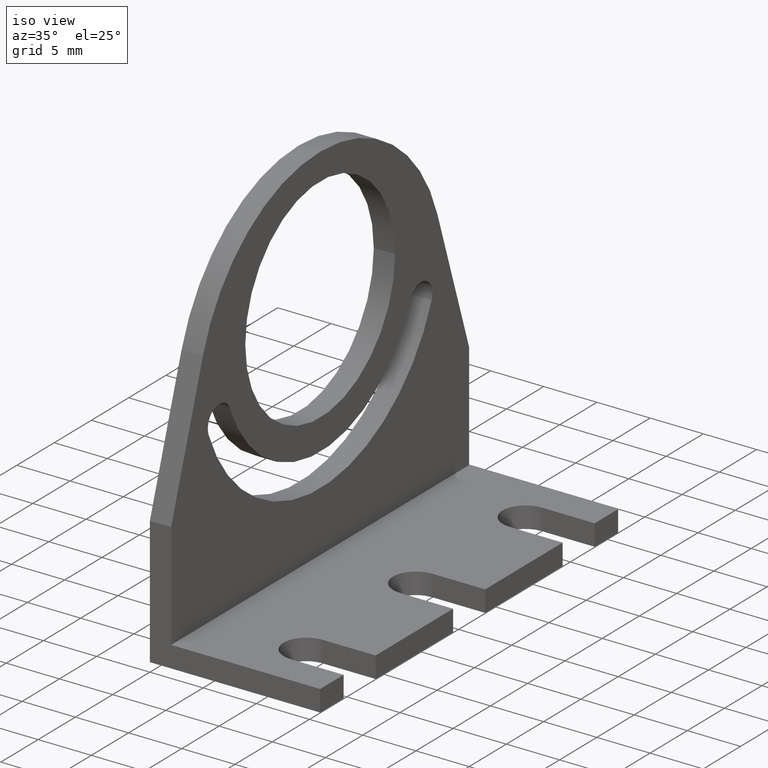
[diagram: clean part render]
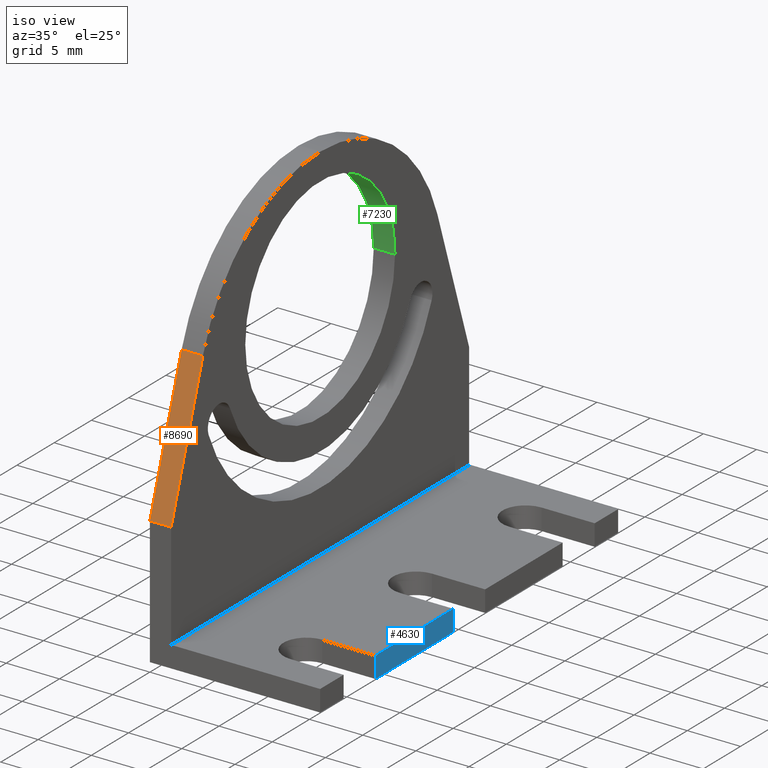
[diagram: same view with three faces highlighted in distinct colors, each labeled with its STEP entity id]
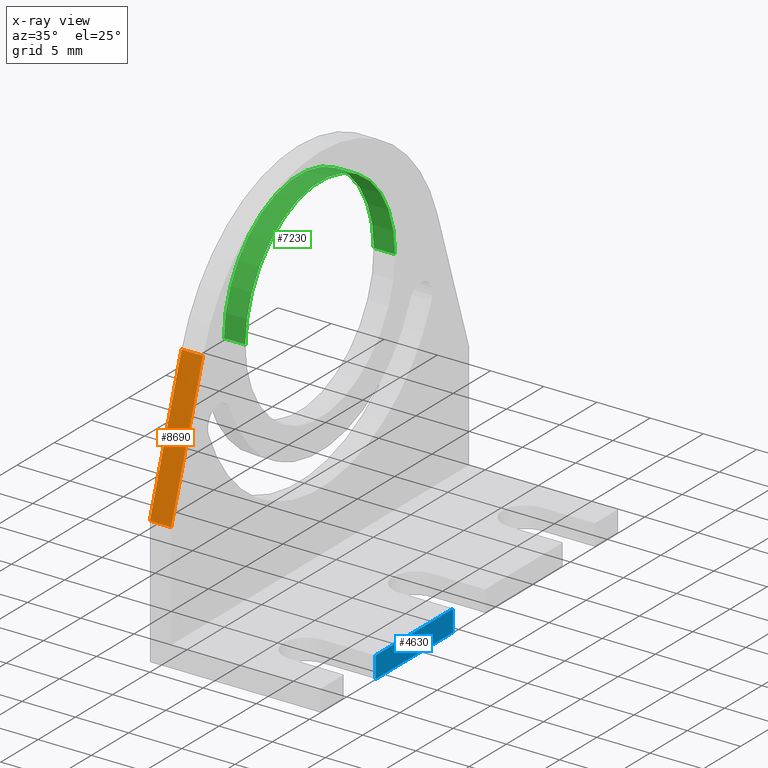
[diagram: x-ray of the same camera — body ghosted, the three highlighted faces saturated]
A machine part, iso view with three faces highlighted in distinct colors.
The next image is the same camera in x-ray (body ghosted, the three faces saturated) — at least one of them is partly hidden behind the body in this view.
Their STEP definitions:

[orange] entity #8690 — the highlighted planar face has unit normal (0, -0.9497, 0.3133).
#6360=CARTESIAN_POINT('',(-20.,9.99999999999999,0.));
#6370=VERTEX_POINT('',#6360);
#6720=CARTESIAN_POINT('',(-15.7379723825014,22.9192712155428,0.));
#6730=VERTEX_POINT('',#6720);
#6760=CARTESIAN_POINT('',(-23.2989690721649,0.,0.));
#6770=DIRECTION('',(0.313289164578338,0.949657780128088,0.));
#6780=VECTOR('',#6770,1.);
#6790=LINE('',#6760,#6780);
#6800=EDGE_CURVE('',#6370,#6730,#6790,.T.);
#7880=CARTESIAN_POINT('',(-23.2989690721649,0.,2.));
#7890=DIRECTION('',(-0.313289164578338,-0.949657780128088,0.));
#7900=VECTOR('',#7890,1.);
#7910=LINE('',#7880,#7900);
#7920=CARTESIAN_POINT('',(-15.7379723825014,22.9192712155426,2.));
#7930=VERTEX_POINT('',#7920);
#7940=CARTESIAN_POINT('',(-20.,9.99999999999998,2.));
#7950=VERTEX_POINT('',#7940);
#7960=EDGE_CURVE('',#7930,#7950,#7910,.T.);
#8480=CARTESIAN_POINT('',(-20.,10.,2.));
#8490=DIRECTION('',(-0.949657780128088,0.313289164578338,0.));
#8500=DIRECTION('',(-0.313289164578338,-0.949657780128088,0.));
#8510=AXIS2_PLACEMENT_3D('',#8480,#8490,#8500);
#8520=PLANE('',#8510);
#8530=CARTESIAN_POINT('',(-20.,10.,0.));
#8540=DIRECTION('',(0.,0.,1.));
#8550=VECTOR('',#8540,1.);
#8560=LINE('',#8530,#8550);
#8570=EDGE_CURVE('',#6370,#7950,#8560,.T.);
#8580=ORIENTED_EDGE('',*,*,#8570,.T.);
#8590=ORIENTED_EDGE('',*,*,#6800,.F.);
#8600=CARTESIAN_POINT('',(-15.7379723825014,22.9192712155426,0.));
#8610=DIRECTION('',(0.,0.,1.));
#8620=VECTOR('',#8610,1.);
#8630=LINE('',#8600,#8620);
#8640=EDGE_CURVE('',#6730,#7930,#8630,.T.);
#8650=ORIENTED_EDGE('',*,*,#8640,.F.);
#8660=ORIENTED_EDGE('',*,*,#7960,.F.);
#8670=EDGE_LOOP('',(#8660,#8650,#8590,#8580));
#8680=FACE_OUTER_BOUND('',#8670,.T.);
#8690=ADVANCED_FACE('',(#8680),#8520,.T.);

[blue] entity #4630 — the highlighted planar face has unit normal (1, 0, -0).
#1080=CARTESIAN_POINT('',(-2.15000000000001,-1.82477793007524E-15,16.));
#1090=VERTEX_POINT('',#1080);
#1120=CARTESIAN_POINT('',(0.,-1.82477793007524E-15,16.));
#1130=DIRECTION('',(1.,7.39557098644699E-32,-3.46944695195361E-16));
#1140=VECTOR('',#1130,1.);
#1150=LINE('',#1120,#1140);
#1160=CARTESIAN_POINT('',(-12.55,-1.82477793007524E-15,16.));
#1170=VERTEX_POINT('',#1160);
#1180=EDGE_CURVE('',#1170,#1090,#1150,.T.);
#2760=CARTESIAN_POINT('',(-12.55,-2.,16.));
#2770=VERTEX_POINT('',#2760);
#2800=CARTESIAN_POINT('',(0.,-2.,16.));
#2810=DIRECTION('',(1.,7.39557098644699E-32,-3.46944695195361E-16));
#2820=VECTOR('',#2810,1.);
#2830=LINE('',#2800,#2820);
#2840=CARTESIAN_POINT('',(-2.15000000000001,-2.,16.));
#2850=VERTEX_POINT('',#2840);
#2860=EDGE_CURVE('',#2770,#2850,#2830,.T.);
#4420=CARTESIAN_POINT('',(-20.,-2.,16.));
#4430=DIRECTION('',(3.46944695195361E-16,-1.31089490766937E-16,1.));
#4440=DIRECTION('',(1.,0.,-3.46944695195361E-16));
#4450=AXIS2_PLACEMENT_3D('',#4420,#4430,#4440);
#4460=PLANE('',#4450);
#4470=CARTESIAN_POINT('',(-2.15000000000001,0.,16.));
#4480=DIRECTION('',(2.46519032881566E-32,1.,1.31089490766937E-16));
#4490=VECTOR('',#4480,1.);
#4500=LINE('',#4470,#4490);
#4510=EDGE_CURVE('',#2850,#1090,#4500,.T.);
#4520=ORIENTED_EDGE('',*,*,#4510,.T.);
#4530=ORIENTED_EDGE('',*,*,#2860,.T.);
#4540=CARTESIAN_POINT('',(-12.55,0.,16.));
#4550=DIRECTION('',(2.46519032881566E-32,1.,1.31089490766937E-16));
#4560=VECTOR('',#4550,1.);
#4570=LINE('',#4540,#4560);
#4580=EDGE_CURVE('',#2770,#1170,#4570,.T.);
#4590=ORIENTED_EDGE('',*,*,#4580,.F.);
#4600=ORIENTED_EDGE('',*,*,#1180,.F.);
#4610=EDGE_LOOP('',(#4600,#4590,#4530,#4520));
#4620=FACE_OUTER_BOUND('',#4610,.T.);
#4630=ADVANCED_FACE('',(#4620),#4460,.T.);

[green] entity #7230 — the highlighted cylindrical surface (partial cylindrical patch) has radius 10.05 mm, axis along (-1, 0, 0).
#6170=CARTESIAN_POINT('',(0.,21.7,0.));
#6180=DIRECTION('',(0.,0.,1.));
#6190=DIRECTION('',(-1.,0.,0.));
#6200=AXIS2_PLACEMENT_3D('',#6170,#6180,#6190);
#6210=CIRCLE('',#6200,10.05);
#6220=CARTESIAN_POINT('',(-10.05,21.7,0.));
#6230=VERTEX_POINT('',#6220);
#6240=CARTESIAN_POINT('',(10.05,21.7,0.));
#6250=VERTEX_POINT('',#6240);
#6280=EDGE_CURVE('',#6250,#6230,#6210,.T.);
#6920=CARTESIAN_POINT('',(0.,21.7,1.));
#6930=DIRECTION('',(0.,0.,-1.));
#6940=DIRECTION('',(-1.,0.,0.));
#6950=AXIS2_PLACEMENT_3D('',#6920,#6930,#6940);
#6960=CYLINDRICAL_SURFACE('',#6950,10.05);
#6970=CARTESIAN_POINT('',(-10.05,21.7,1.));
#6980=DIRECTION('',(0.,0.,-1.));
#6990=VECTOR('',#6980,1.);
#7000=LINE('',#6970,#6990);
#7010=CARTESIAN_POINT('',(-10.05,21.7,2.));
#7020=VERTEX_POINT('',#7010);
#7030=EDGE_CURVE('',#7020,#6230,#7000,.T.);
#7040=ORIENTED_EDGE('',*,*,#7030,.T.);
#7050=CARTESIAN_POINT('',(0.,21.7,2.));
#7060=DIRECTION('',(0.,0.,-1.));
#7070=DIRECTION('',(1.,0.,0.));
#7080=AXIS2_PLACEMENT_3D('',#7050,#7060,#7070);
#7090=CIRCLE('',#7080,10.05);
#7100=CARTESIAN_POINT('',(10.05,21.7,2.));
#7110=VERTEX_POINT('',#7100);
#7120=EDGE_CURVE('',#7020,#7110,#7090,.T.);
#7130=ORIENTED_EDGE('',*,*,#7120,.F.);
#7140=CARTESIAN_POINT('',(10.05,21.7,1.));
#7150=DIRECTION('',(0.,0.,-1.));
#7160=VECTOR('',#7150,1.);
#7170=LINE('',#7140,#7160);
#7180=EDGE_CURVE('',#7110,#6250,#7170,.T.);
#7190=ORIENTED_EDGE('',*,*,#7180,.F.);
#7200=ORIENTED_EDGE('',*,*,#6280,.F.);
#7210=EDGE_LOOP('',(#7200,#7190,#7130,#7040));
#7220=FACE_OUTER_BOUND('',#7210,.T.);
#7230=ADVANCED_FACE('',(#7220),#6960,.F.);